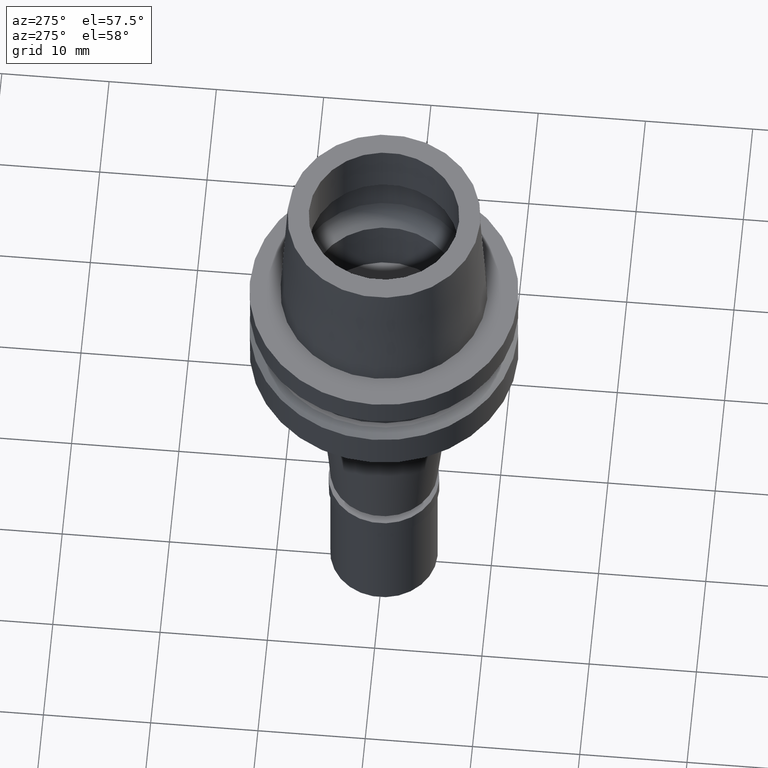
[diagram: clean part render]
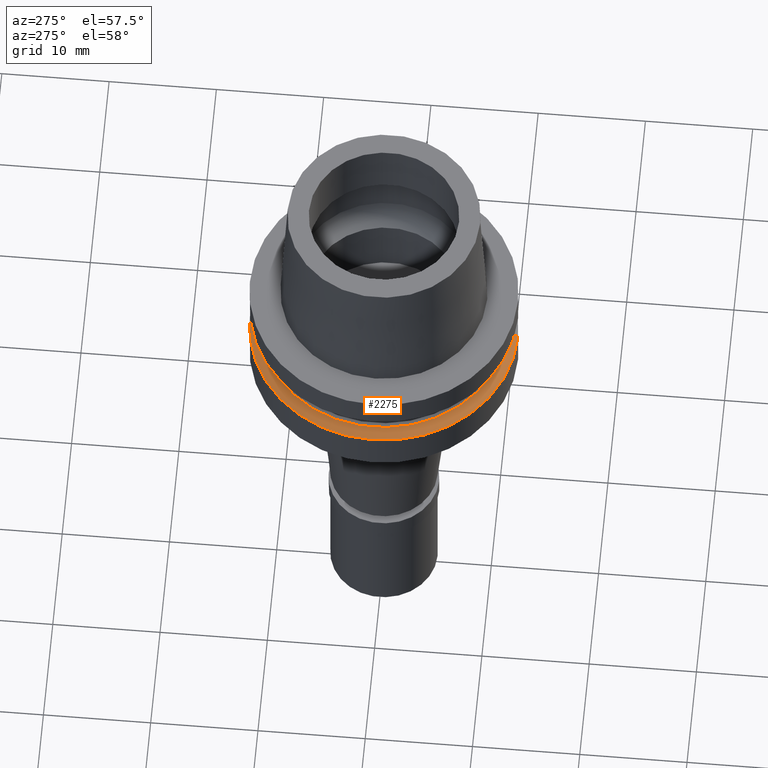
[diagram: same view with one face highlighted and labeled with its STEP entity id]
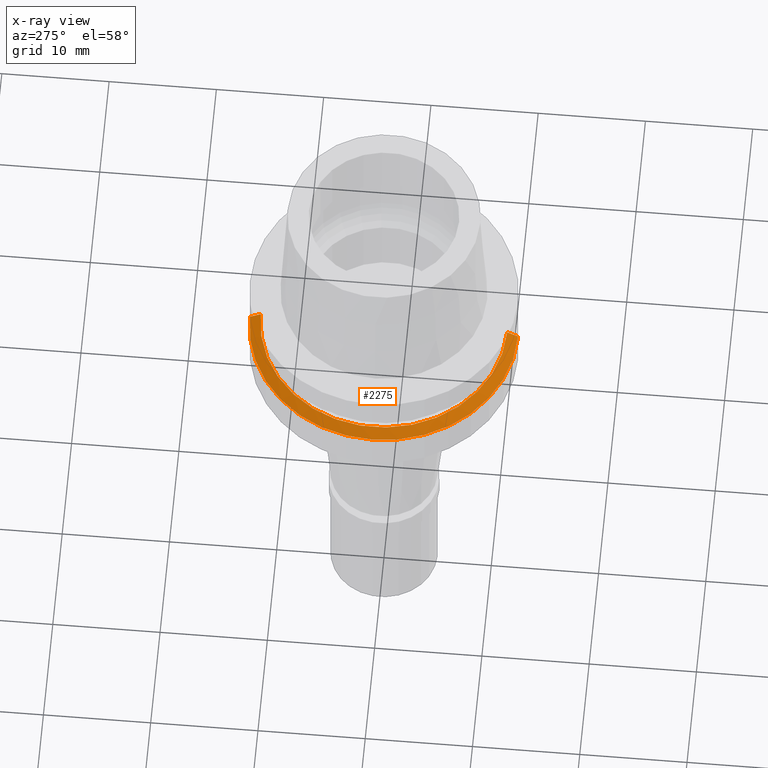
[diagram: x-ray of the same camera — body ghosted, the highlighted face saturated]
A machine part, auxiliary view. The second image highlights one B-rep face of the part: STEP entity #2275.
The next image is the same camera in x-ray: the body ghosted, the highlighted face saturated — about 0% of this face is hidden behind the body in this view.
In plain terms, the highlighted conical surface has half-angle 60 deg.
Its self-contained STEP definition (entity closure, byte-faithful):
#34 = CONICAL_SURFACE ( 'NONE', #799, 11.99102540378000192, 1.047197551196400456 ) ;
#35 = DIRECTION ( 'NONE',  ( 0.0000000000000000000, 0.8660254037846089048, -0.4999999999997049027 ) ) ;
#57 = CARTESIAN_POINT ( 'NONE',  ( 0.0000000000000000000, 11.48205080757000118, -5.500000000002000178 ) ) ;
#135 = DIRECTION ( 'NONE',  ( 0.0000000000000000000, 0.0000000000000000000, -1.000000000000000000 ) ) ;
#137 = ORIENTED_EDGE ( 'NONE', *, *, #2606, .T. ) ;
#140 = CARTESIAN_POINT ( 'NONE',  ( 0.0000000000000000000, 0.0000000000000000000, -5.500000000003000267 ) ) ;
#167 = EDGE_CURVE ( 'NONE', #589, #817, #2320, .T. ) ;
#213 = CARTESIAN_POINT ( 'NONE',  ( 0.0000000000000000000, 0.0000000000000000000, -5.793856620138000402 ) ) ;
#331 = DIRECTION ( 'NONE',  ( 0.0000000000000000000, -1.000000000000000000, 0.0000000000000000000 ) ) ;
#438 = CIRCLE ( 'NONE', #1837, 11.48205080757000118 ) ;
#488 = DIRECTION ( 'NONE',  ( 0.0000000000000000000, -1.000000000000000000, 0.0000000000000000000 ) ) ;
#511 = AXIS2_PLACEMENT_3D ( 'NONE', #2018, #135, #1257 ) ;
#541 = ORIENTED_EDGE ( 'NONE', *, *, #1136, .F. ) ;
#589 = VERTEX_POINT ( 'NONE', #2108 ) ;
#767 = EDGE_CURVE ( 'NONE', #974, #817, #1786, .T. ) ;
#790 = CARTESIAN_POINT ( 'NONE',  ( 0.0000000000000000000, 12.50000000000000000, -6.087713240272000448 ) ) ;
#799 = AXIS2_PLACEMENT_3D ( 'NONE', #213, #2135, #488 ) ;
#817 = VERTEX_POINT ( 'NONE', #790 ) ;
#910 = CARTESIAN_POINT ( 'NONE',  ( 0.0000000000000000000, -11.48205080757000118, -5.500000000002000178 ) ) ;
#974 = VERTEX_POINT ( 'NONE', #2507 ) ;
#1052 = VECTOR ( 'NONE', #2164, 1000.000000000000114 ) ;
#1131 = EDGE_LOOP ( 'NONE', ( #1381, #541, #137, #1633 ) ) ;
#1136 = EDGE_CURVE ( 'NONE', #1194, #974, #1531, .T. ) ;
#1194 = VERTEX_POINT ( 'NONE', #1944 ) ;
#1257 = DIRECTION ( 'NONE',  ( 0.0000000000000000000, -1.000000000000000000, 0.0000000000000000000 ) ) ;
#1381 = ORIENTED_EDGE ( 'NONE', *, *, #767, .F. ) ;
#1441 = VECTOR ( 'NONE', #35, 1000.000000000000114 ) ;
#1531 = LINE ( 'NONE', #910, #1052 ) ;
#1633 = ORIENTED_EDGE ( 'NONE', *, *, #167, .T. ) ;
#1786 = CIRCLE ( 'NONE', #511, 12.50000000000000000 ) ;
#1837 = AXIS2_PLACEMENT_3D ( 'NONE', #140, #2414, #331 ) ;
#1944 = CARTESIAN_POINT ( 'NONE',  ( 0.0000000000000000000, -11.48205080757000118, -5.500000000003000267 ) ) ;
#2018 = CARTESIAN_POINT ( 'NONE',  ( 0.0000000000000000000, 0.0000000000000000000, -6.087713240272999649 ) ) ;
#2108 = CARTESIAN_POINT ( 'NONE',  ( 0.0000000000000000000, 11.48205080757000118, -5.500000000003000267 ) ) ;
#2135 = DIRECTION ( 'NONE',  ( 0.0000000000000000000, 0.0000000000000000000, -1.000000000000000000 ) ) ;
#2164 = DIRECTION ( 'NONE',  ( 0.0000000000000000000, -0.8660254037846089048, -0.4999999999997049027 ) ) ;
#2275 = ADVANCED_FACE ( 'NONE', ( #2339 ), #34, .T. ) ;
#2320 = LINE ( 'NONE', #57, #1441 ) ;
#2339 = FACE_OUTER_BOUND ( 'NONE', #1131, .T. ) ;
#2414 = DIRECTION ( 'NONE',  ( 0.0000000000000000000, 0.0000000000000000000, -1.000000000000000000 ) ) ;
#2507 = CARTESIAN_POINT ( 'NONE',  ( 0.0000000000000000000, -12.50000000000000000, -6.087713240272000448 ) ) ;
#2606 = EDGE_CURVE ( 'NONE', #1194, #589, #438, .T. ) ;